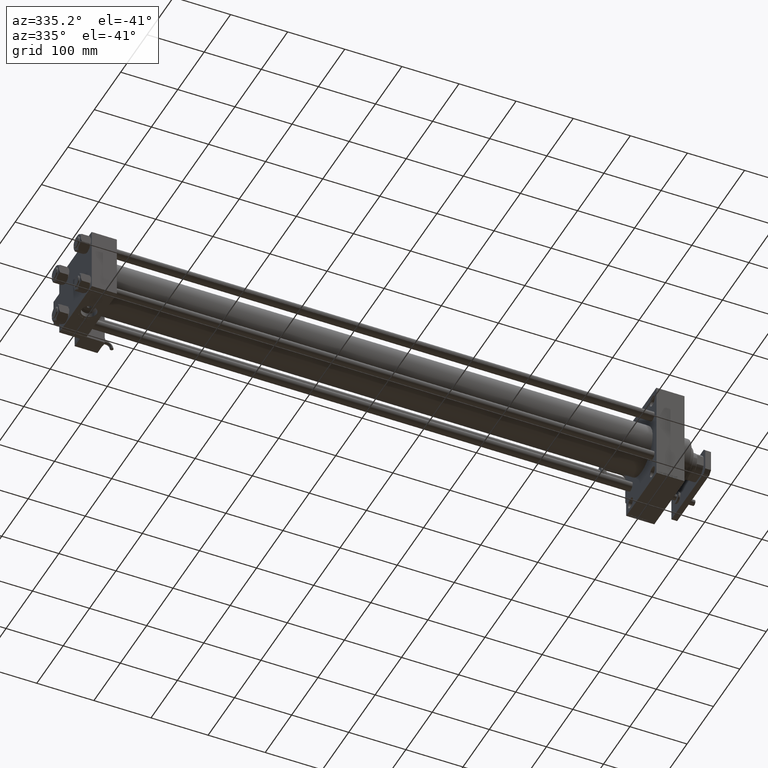
[diagram: clean part render]
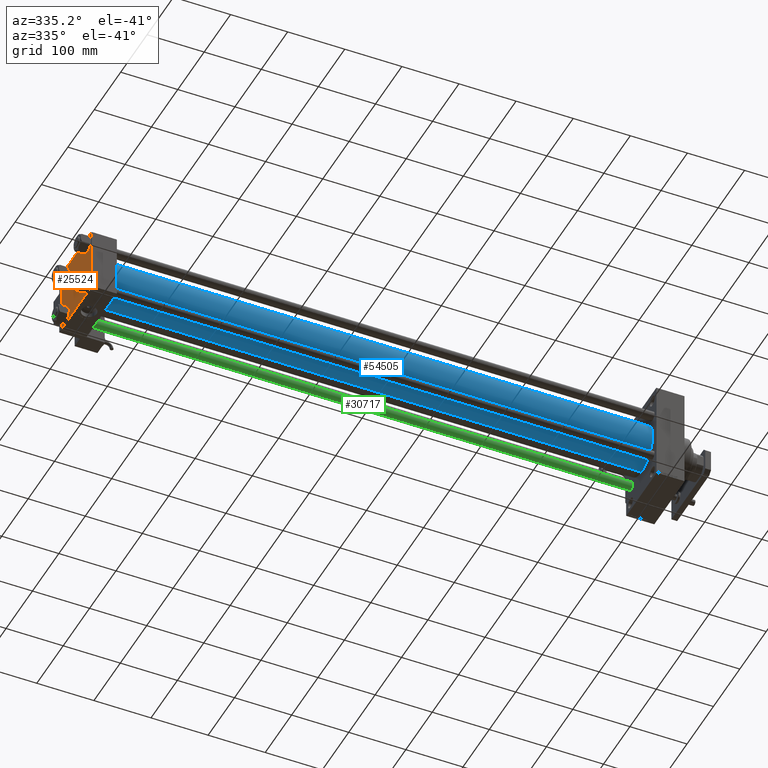
[diagram: same view with three faces highlighted in distinct colors, each labeled with its STEP entity id]
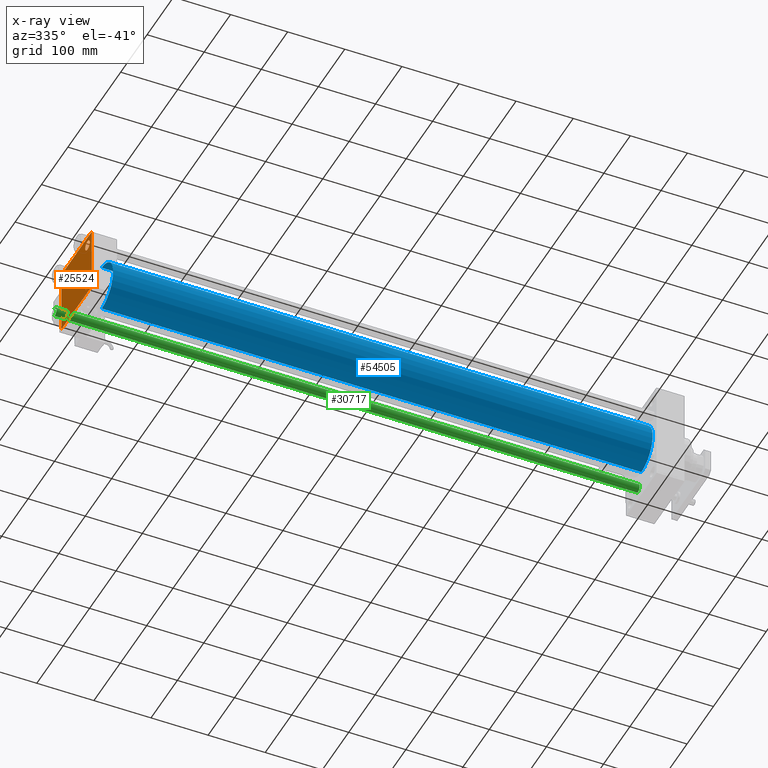
[diagram: x-ray of the same camera — body ghosted, the three highlighted faces saturated]
A machine part, auxiliary view with three faces highlighted in distinct colors.
The next image is the same camera in x-ray (body ghosted, the three faces saturated) — at least one of them is partly hidden behind the body in this view.
Their STEP definitions:

[orange] entity #25524 — the highlighted planar face has unit normal (-1, 0, 0).
#472 = VECTOR ( 'NONE', #47774, 1000.000000000000000 ) ;
#583 = CARTESIAN_POINT ( 'NONE',  ( 0.000000000000000000, -57.50000000000000000, 56.99999999999997868 ) ) ;
#886 = CARTESIAN_POINT ( 'NONE',  ( 0.000000000000000000, 41.34999999999999432, 41.34999999999999432 ) ) ;
#1407 = CARTESIAN_POINT ( 'NONE',  ( 0.000000000000000000, -57.49999999999999289, -57.00000000000003553 ) ) ;
#1679 = CIRCLE ( 'NONE', #4413, 8.499999999999992895 ) ;
#1749 = LINE ( 'NONE', #44703, #44667 ) ;
#1907 = PLANE ( 'NONE',  #14143 ) ;
#2385 = CARTESIAN_POINT ( 'NONE',  ( 0.000000000000000000, 41.34999999999999432, -41.34999999999999432 ) ) ;
#3328 = ORIENTED_EDGE ( 'NONE', *, *, #8777, .F. ) ;
#3575 = LINE ( 'NONE', #20702, #10053 ) ;
#3611 = ORIENTED_EDGE ( 'NONE', *, *, #27211, .T. ) ;
#3769 = ORIENTED_EDGE ( 'NONE', *, *, #6845, .T. ) ;
#3789 = CARTESIAN_POINT ( 'NONE',  ( 0.000000000000000000, -41.34999999999998721, 41.35000000000000142 ) ) ;
#3870 = EDGE_CURVE ( 'NONE', #15380, #25013, #34316, .T. ) ;
#4316 = CIRCLE ( 'NONE', #40188, 8.499999999999992895 ) ;
#4413 = AXIS2_PLACEMENT_3D ( 'NONE', #5612, #32280, #31708 ) ;
#4792 = VERTEX_POINT ( 'NONE', #34865 ) ;
#5126 = CARTESIAN_POINT ( 'NONE',  ( 0.000000000000000000, 57.00000000000001421, 57.50000000000001421 ) ) ;
#5292 = FACE_OUTER_BOUND ( 'NONE', #35782, .T. ) ;
#5612 = CARTESIAN_POINT ( 'NONE',  ( 0.000000000000000000, -41.34999999999998721, -41.35000000000000142 ) ) ;
#5772 = DIRECTION ( 'NONE',  ( 0.000000000000000000, 0.000000000000000000, 1.000000000000000000 ) ) ;
#5986 = LINE ( 'NONE', #51772, #47277 ) ;
#6124 = FACE_BOUND ( 'NONE', #35247, .T. ) ;
#6845 = EDGE_CURVE ( 'NONE', #22451, #30479, #14969, .T. ) ;
#6895 = LINE ( 'NONE', #24005, #27522 ) ;
#6917 = VERTEX_POINT ( 'NONE', #51258 ) ;
#8036 = CARTESIAN_POINT ( 'NONE',  ( 0.000000000000000000, 41.34999999999999432, 41.34999999999999432 ) ) ;
#8777 = EDGE_CURVE ( 'NONE', #46568, #12238, #1749, .T. ) ;
#8823 = EDGE_CURVE ( 'NONE', #33726, #25355, #4316, .T. ) ;
#9693 = EDGE_CURVE ( 'NONE', #17118, #20134, #50997, .T. ) ;
#10053 = VECTOR ( 'NONE', #29393, 1000.000000000000114 ) ;
#10580 = AXIS2_PLACEMENT_3D ( 'NONE', #886, #29816, #17990 ) ;
#10623 = CIRCLE ( 'NONE', #30337, 8.499999999999992895 ) ;
#10842 = EDGE_CURVE ( 'NONE', #52630, #12238, #5986, .T. ) ;
#11962 = DIRECTION ( 'NONE',  ( 1.000000000000000000, -0.000000000000000000, 0.000000000000000000 ) ) ;
#12013 = VECTOR ( 'NONE', #51996, 999.9999999999998863 ) ;
#12211 = ORIENTED_EDGE ( 'NONE', *, *, #26237, .T. ) ;
#12238 = VERTEX_POINT ( 'NONE', #1407 ) ;
#12253 = CARTESIAN_POINT ( 'NONE',  ( 0.000000000000000000, 57.25000000000119371, -57.24999999999880629 ) ) ;
#12825 = VERTEX_POINT ( 'NONE', #48638 ) ;
#13301 = DIRECTION ( 'NONE',  ( 0.000000000000000000, -0.7071067811865524577, 0.7071067811865426878 ) ) ;
#13801 = LINE ( 'NONE', #22780, #12013 ) ;
#14105 = AXIS2_PLACEMENT_3D ( 'NONE', #2385, #14747, #5772 ) ;
#14143 = AXIS2_PLACEMENT_3D ( 'NONE', #43764, #22692, #36150 ) ;
#14747 = DIRECTION ( 'NONE',  ( 1.000000000000000000, -0.000000000000000000, 0.000000000000000000 ) ) ;
#14969 = CIRCLE ( 'NONE', #49968, 8.499999999999992895 ) ;
#15000 = ORIENTED_EDGE ( 'NONE', *, *, #3870, .F. ) ;
#15380 = VERTEX_POINT ( 'NONE', #5126 ) ;
#16189 = DIRECTION ( 'NONE',  ( -0.000000000000000000, -0.7071067811865328068, -0.7071067811865622277 ) ) ;
#16267 = CIRCLE ( 'NONE', #51254, 8.499999999999992895 ) ;
#17118 = VERTEX_POINT ( 'NONE', #46237 ) ;
#17990 = DIRECTION ( 'NONE',  ( 0.000000000000000000, 0.000000000000000000, 1.000000000000000000 ) ) ;
#18082 = CARTESIAN_POINT ( 'NONE',  ( 0.000000000000000000, 41.34999999999999432, 32.85000000000000142 ) ) ;
#19166 = ORIENTED_EDGE ( 'NONE', *, *, #54966, .T. ) ;
#20001 = AXIS2_PLACEMENT_3D ( 'NONE', #39884, #31440, #27492 ) ;
#20134 = VERTEX_POINT ( 'NONE', #45382 ) ;
#20699 = CARTESIAN_POINT ( 'NONE',  ( 0.000000000000000000, 57.50000000000000000, -57.49999999999999289 ) ) ;
#20702 = CARTESIAN_POINT ( 'NONE',  ( 0.000000000000000000, 57.24999999999922551, 57.25000000000081712 ) ) ;
#21430 = EDGE_CURVE ( 'NONE', #27419, #17118, #6895, .T. ) ;
#22451 = VERTEX_POINT ( 'NONE', #18082 ) ;
#22564 = CARTESIAN_POINT ( 'NONE',  ( 0.000000000000000000, 57.50000000000000000, 57.00000000000004263 ) ) ;
#22670 = CIRCLE ( 'NONE', #20001, 8.499999999999992895 ) ;
#22692 = DIRECTION ( 'NONE',  ( -1.000000000000000000, 0.000000000000000000, -0.000000000000000000 ) ) ;
#22780 = CARTESIAN_POINT ( 'NONE',  ( -0.000000000000000000, -57.24999999999918998, 57.25000000000078160 ) ) ;
#22827 = EDGE_LOOP ( 'NONE', ( #12211, #3769 ) ) ;
#24005 = CARTESIAN_POINT ( 'NONE',  ( 0.000000000000000000, 57.50000000000000000, 57.50000000000001421 ) ) ;
#24543 = ORIENTED_EDGE ( 'NONE', *, *, #9693, .T. ) ;
#24592 = EDGE_CURVE ( 'NONE', #35815, #6917, #30220, .T. ) ;
#25013 = VERTEX_POINT ( 'NONE', #46114 ) ;
#25113 = DIRECTION ( 'NONE',  ( 0.000000000000000000, 0.000000000000000000, 1.000000000000000000 ) ) ;
#25201 = CARTESIAN_POINT ( 'NONE',  ( 0.000000000000000000, 41.34999999999999432, 49.84999999999999432 ) ) ;
#25330 = CARTESIAN_POINT ( 'NONE',  ( 0.000000000000000000, 57.50000000000000000, 57.50000000000001421 ) ) ;
#25355 = VERTEX_POINT ( 'NONE', #42134 ) ;
#25524 = ADVANCED_FACE ( 'NONE', ( #44584, #48241, #6124, #40383, #5292 ), #1907, .T. ) ;
#26237 = EDGE_CURVE ( 'NONE', #30479, #22451, #46464, .T. ) ;
#26967 = VECTOR ( 'NONE', #33881, 1000.000000000000000 ) ;
#27032 = CARTESIAN_POINT ( 'NONE',  ( 0.000000000000000000, 41.34999999999999432, -49.84999999999999432 ) ) ;
#27211 = EDGE_CURVE ( 'NONE', #25355, #33726, #10623, .T. ) ;
#27297 = EDGE_LOOP ( 'NONE', ( #35258, #19166 ) ) ;
#27419 = VERTEX_POINT ( 'NONE', #22564 ) ;
#27492 = DIRECTION ( 'NONE',  ( 0.000000000000000000, 0.000000000000000000, 1.000000000000000000 ) ) ;
#27522 = VECTOR ( 'NONE', #31598, 1000.000000000000000 ) ;
#28950 = DIRECTION ( 'NONE',  ( 0.000000000000000000, 6.033820786006285224E-17, -1.000000000000000000 ) ) ;
#29393 = DIRECTION ( 'NONE',  ( 0.000000000000000000, 0.7071067811865573427, -0.7071067811865376918 ) ) ;
#29816 = DIRECTION ( 'NONE',  ( 1.000000000000000000, -0.000000000000000000, 0.000000000000000000 ) ) ;
#29940 = CARTESIAN_POINT ( 'NONE',  ( 0.000000000000000000, 41.34999999999999432, -41.34999999999999432 ) ) ;
#30220 = CIRCLE ( 'NONE', #14105, 8.499999999999992895 ) ;
#30337 = AXIS2_PLACEMENT_3D ( 'NONE', #3789, #43086, #25113 ) ;
#30479 = VERTEX_POINT ( 'NONE', #25201 ) ;
#31440 = DIRECTION ( 'NONE',  ( 1.000000000000000000, -0.000000000000000000, 0.000000000000000000 ) ) ;
#31598 = DIRECTION ( 'NONE',  ( 0.000000000000000000, 0.000000000000000000, -1.000000000000000000 ) ) ;
#31708 = DIRECTION ( 'NONE',  ( 0.000000000000000000, 0.000000000000000000, 1.000000000000000000 ) ) ;
#31838 = ORIENTED_EDGE ( 'NONE', *, *, #50696, .T. ) ;
#31969 = CARTESIAN_POINT ( 'NONE',  ( 0.000000000000000000, -57.00000000000001421, -57.50000000000000711 ) ) ;
#32280 = DIRECTION ( 'NONE',  ( 1.000000000000000000, -0.000000000000000000, 0.000000000000000000 ) ) ;
#32587 = ORIENTED_EDGE ( 'NONE', *, *, #21430, .T. ) ;
#33726 = VERTEX_POINT ( 'NONE', #37488 ) ;
#33881 = DIRECTION ( 'NONE',  ( 0.000000000000000000, -1.000000000000000000, -1.206764157201257291E-16 ) ) ;
#33927 = VECTOR ( 'NONE', #16189, 1000.000000000000000 ) ;
#34316 = LINE ( 'NONE', #25330, #472 ) ;
#34865 = CARTESIAN_POINT ( 'NONE',  ( 0.000000000000000000, -41.34999999999998721, -49.85000000000000142 ) ) ;
#34879 = ORIENTED_EDGE ( 'NONE', *, *, #36899, .T. ) ;
#35247 = EDGE_LOOP ( 'NONE', ( #49543, #41472 ) ) ;
#35258 = ORIENTED_EDGE ( 'NONE', *, *, #46655, .T. ) ;
#35782 = EDGE_LOOP ( 'NONE', ( #32587, #24543, #31838, #49948, #3328, #44152, #15000, #34879 ) ) ;
#35801 = EDGE_CURVE ( 'NONE', #6917, #35815, #16267, .T. ) ;
#35815 = VERTEX_POINT ( 'NONE', #27032 ) ;
#36013 = DIRECTION ( 'NONE',  ( 1.000000000000000000, -0.000000000000000000, 0.000000000000000000 ) ) ;
#36150 = DIRECTION ( 'NONE',  ( -0.000000000000000000, 0.000000000000000000, 1.000000000000000000 ) ) ;
#36899 = EDGE_CURVE ( 'NONE', #15380, #27419, #3575, .T. ) ;
#37488 = CARTESIAN_POINT ( 'NONE',  ( 0.000000000000000000, -41.34999999999998721, 32.85000000000000853 ) ) ;
#37546 = LINE ( 'NONE', #20699, #26967 ) ;
#39884 = CARTESIAN_POINT ( 'NONE',  ( 0.000000000000000000, -41.34999999999998721, -41.35000000000000142 ) ) ;
#40188 = AXIS2_PLACEMENT_3D ( 'NONE', #45822, #41054, #41897 ) ;
#40383 = FACE_BOUND ( 'NONE', #22827, .T. ) ;
#40522 = EDGE_CURVE ( 'NONE', #46568, #25013, #13801, .T. ) ;
#41054 = DIRECTION ( 'NONE',  ( 1.000000000000000000, -0.000000000000000000, 0.000000000000000000 ) ) ;
#41472 = ORIENTED_EDGE ( 'NONE', *, *, #24592, .T. ) ;
#41897 = DIRECTION ( 'NONE',  ( 0.000000000000000000, 0.000000000000000000, 1.000000000000000000 ) ) ;
#42134 = CARTESIAN_POINT ( 'NONE',  ( 0.000000000000000000, -41.34999999999998721, 49.85000000000000142 ) ) ;
#43086 = DIRECTION ( 'NONE',  ( 1.000000000000000000, -0.000000000000000000, 0.000000000000000000 ) ) ;
#43764 = CARTESIAN_POINT ( 'NONE',  ( 0.000000000000000000, 0.000000000000000000, 0.000000000000000000 ) ) ;
#44152 = ORIENTED_EDGE ( 'NONE', *, *, #40522, .T. ) ;
#44584 = FACE_BOUND ( 'NONE', #46677, .T. ) ;
#44667 = VECTOR ( 'NONE', #28950, 1000.000000000000000 ) ;
#44703 = CARTESIAN_POINT ( 'NONE',  ( 0.000000000000000000, -57.50000000000000000, 57.49999999999999289 ) ) ;
#45382 = CARTESIAN_POINT ( 'NONE',  ( 0.000000000000000000, 57.00000000000002842, -57.49999999999999289 ) ) ;
#45822 = CARTESIAN_POINT ( 'NONE',  ( 0.000000000000000000, -41.34999999999998721, 41.35000000000000142 ) ) ;
#46114 = CARTESIAN_POINT ( 'NONE',  ( 0.000000000000000000, -56.99999999999997158, 57.49999999999999289 ) ) ;
#46237 = CARTESIAN_POINT ( 'NONE',  ( 0.000000000000000000, 57.50000000000000000, -56.99999999999997158 ) ) ;
#46464 = CIRCLE ( 'NONE', #10580, 8.499999999999992895 ) ;
#46568 = VERTEX_POINT ( 'NONE', #583 ) ;
#46655 = EDGE_CURVE ( 'NONE', #12825, #4792, #1679, .T. ) ;
#46677 = EDGE_LOOP ( 'NONE', ( #3611, #47294 ) ) ;
#47277 = VECTOR ( 'NONE', #13301, 1000.000000000000000 ) ;
#47294 = ORIENTED_EDGE ( 'NONE', *, *, #8823, .T. ) ;
#47774 = DIRECTION ( 'NONE',  ( 0.000000000000000000, -1.000000000000000000, -1.810146235801885567E-16 ) ) ;
#48241 = FACE_BOUND ( 'NONE', #27297, .T. ) ;
#48375 = DIRECTION ( 'NONE',  ( 0.000000000000000000, 0.000000000000000000, 1.000000000000000000 ) ) ;
#48638 = CARTESIAN_POINT ( 'NONE',  ( 0.000000000000000000, -41.34999999999998721, -32.85000000000000853 ) ) ;
#49543 = ORIENTED_EDGE ( 'NONE', *, *, #35801, .T. ) ;
#49948 = ORIENTED_EDGE ( 'NONE', *, *, #10842, .T. ) ;
#49968 = AXIS2_PLACEMENT_3D ( 'NONE', #8036, #11962, #50148 ) ;
#50148 = DIRECTION ( 'NONE',  ( 0.000000000000000000, 0.000000000000000000, 1.000000000000000000 ) ) ;
#50696 = EDGE_CURVE ( 'NONE', #20134, #52630, #37546, .T. ) ;
#50997 = LINE ( 'NONE', #12253, #33927 ) ;
#51254 = AXIS2_PLACEMENT_3D ( 'NONE', #29940, #36013, #48375 ) ;
#51258 = CARTESIAN_POINT ( 'NONE',  ( 0.000000000000000000, 41.34999999999999432, -32.85000000000000142 ) ) ;
#51772 = CARTESIAN_POINT ( 'NONE',  ( 0.000000000000000000, -57.24999999999962341, -57.25000000000041211 ) ) ;
#51996 = DIRECTION ( 'NONE',  ( -0.000000000000000000, 0.7071067811865574537, 0.7071067811865376918 ) ) ;
#52630 = VERTEX_POINT ( 'NONE', #31969 ) ;
#54966 = EDGE_CURVE ( 'NONE', #4792, #12825, #22670, .T. ) ;

[blue] entity #54505 — the highlighted cylindrical surface (edge-blend (fillet) strip) has radius 43 mm, axis along (-1, -0, -0).
#236 = CIRCLE ( 'NONE', #19018, 43.00000000000000000 ) ;
#3155 = DIRECTION ( 'NONE',  ( -1.000000000000000000, -0.000000000000000000, -0.000000000000000000 ) ) ;
#3812 = VERTEX_POINT ( 'NONE', #4003 ) ;
#4003 = CARTESIAN_POINT ( 'NONE',  ( 989.0000000000000000, -2.602085213965210642E-15, 43.00000000000000000 ) ) ;
#4472 = CIRCLE ( 'NONE', #10718, 43.00000000000000000 ) ;
#7606 = CARTESIAN_POINT ( 'NONE',  ( 989.0000000000000000, -2.602085213965210642E-15, 0.000000000000000000 ) ) ;
#10718 = AXIS2_PLACEMENT_3D ( 'NONE', #52489, #14580, #48551 ) ;
#14580 = DIRECTION ( 'NONE',  ( 1.000000000000000000, -0.000000000000000000, 0.000000000000000000 ) ) ;
#14666 = CYLINDRICAL_SURFACE ( 'NONE', #18145, 43.00000000000000000 ) ;
#15739 = EDGE_CURVE ( 'NONE', #41309, #18129, #4472, .T. ) ;
#18129 = VERTEX_POINT ( 'NONE', #53793 ) ;
#18145 = AXIS2_PLACEMENT_3D ( 'NONE', #31513, #39406, #27021 ) ;
#19018 = AXIS2_PLACEMENT_3D ( 'NONE', #7606, #46340, #55038 ) ;
#19303 = DIRECTION ( 'NONE',  ( -1.000000000000000000, -0.000000000000000000, -0.000000000000000000 ) ) ;
#26095 = EDGE_CURVE ( 'NONE', #41125, #18129, #41358, .T. ) ;
#26752 = FACE_OUTER_BOUND ( 'NONE', #39903, .T. ) ;
#27021 = DIRECTION ( 'NONE',  ( 0.000000000000000000, 0.000000000000000000, 1.000000000000000000 ) ) ;
#28907 = ORIENTED_EDGE ( 'NONE', *, *, #15739, .T. ) ;
#28966 = CARTESIAN_POINT ( 'NONE',  ( 44.00000000000004263, -2.602085213965210642E-15, 43.00000000000000000 ) ) ;
#29530 = CARTESIAN_POINT ( 'NONE',  ( 989.0000000000000000, 2.663896022368408223E-15, -43.00000000000000000 ) ) ;
#31513 = CARTESIAN_POINT ( 'NONE',  ( 989.0000000000000000, -2.602085213965210642E-15, 0.000000000000000000 ) ) ;
#35593 = CARTESIAN_POINT ( 'NONE',  ( 989.0000000000000000, -2.602085213965210642E-15, 43.00000000000000000 ) ) ;
#37724 = VECTOR ( 'NONE', #19303, 1000.000000000000000 ) ;
#38050 = EDGE_CURVE ( 'NONE', #3812, #41125, #236, .T. ) ;
#39406 = DIRECTION ( 'NONE',  ( -1.000000000000000000, -0.000000000000000000, -0.000000000000000000 ) ) ;
#39592 = ORIENTED_EDGE ( 'NONE', *, *, #26095, .F. ) ;
#39903 = EDGE_LOOP ( 'NONE', ( #39592, #46828, #42711, #28907 ) ) ;
#41125 = VERTEX_POINT ( 'NONE', #45554 ) ;
#41309 = VERTEX_POINT ( 'NONE', #28966 ) ;
#41358 = LINE ( 'NONE', #29530, #47330 ) ;
#42711 = ORIENTED_EDGE ( 'NONE', *, *, #50632, .T. ) ;
#44578 = LINE ( 'NONE', #35593, #37724 ) ;
#45554 = CARTESIAN_POINT ( 'NONE',  ( 989.0000000000000000, 2.663896022368408223E-15, -43.00000000000000000 ) ) ;
#46340 = DIRECTION ( 'NONE',  ( 1.000000000000000000, 0.000000000000000000, 0.000000000000000000 ) ) ;
#46828 = ORIENTED_EDGE ( 'NONE', *, *, #38050, .F. ) ;
#47330 = VECTOR ( 'NONE', #3155, 1000.000000000000000 ) ;
#48551 = DIRECTION ( 'NONE',  ( 0.000000000000000000, 0.000000000000000000, 1.000000000000000000 ) ) ;
#50632 = EDGE_CURVE ( 'NONE', #3812, #41309, #44578, .T. ) ;
#52489 = CARTESIAN_POINT ( 'NONE',  ( 44.00000000000004263, -2.602085213965210642E-15, 0.000000000000000000 ) ) ;
#53793 = CARTESIAN_POINT ( 'NONE',  ( 44.00000000000004263, 2.663896022368408223E-15, -43.00000000000000000 ) ) ;
#54505 = ADVANCED_FACE ( 'NONE', ( #26752 ), #14666, .T. ) ;
#55038 = DIRECTION ( 'NONE',  ( 0.000000000000000000, 0.000000000000000000, -1.000000000000000000 ) ) ;

[green] entity #30717 — the highlighted cylindrical surface (edge-blend (fillet) strip) has radius 8 mm, axis along (-1, -0, 0).
#2466 = EDGE_CURVE ( 'NONE', #38851, #35564, #21958, .T. ) ;
#3533 = FACE_OUTER_BOUND ( 'NONE', #8241, .T. ) ;
#4915 = VECTOR ( 'NONE', #55297, 1000.000000000000000 ) ;
#7201 = DIRECTION ( 'NONE',  ( -0.000000000000000000, -0.000000000000000000, -1.000000000000000000 ) ) ;
#7291 = DIRECTION ( 'NONE',  ( -0.000000000000000000, -0.000000000000000000, 1.000000000000000000 ) ) ;
#7922 = CARTESIAN_POINT ( 'NONE',  ( 0.000000000000000000, 0.000000000000000000, 1021.499999999999886 ) ) ;
#8153 = CARTESIAN_POINT ( 'NONE',  ( -8.000000000000000000, 0.000000000000000000, 1022.000000000000000 ) ) ;
#8209 = DIRECTION ( 'NONE',  ( 1.000000000000000000, 0.000000000000000000, 0.000000000000000000 ) ) ;
#8241 = EDGE_LOOP ( 'NONE', ( #36532, #43634, #14300, #49172 ) ) ;
#8392 = EDGE_CURVE ( 'NONE', #19950, #41187, #42839, .T. ) ;
#8669 = EDGE_CURVE ( 'NONE', #19950, #35564, #27844, .T. ) ;
#14300 = ORIENTED_EDGE ( 'NONE', *, *, #42679, .T. ) ;
#15333 = CYLINDRICAL_SURFACE ( 'NONE', #48446, 8.000000000000000000 ) ;
#16512 = CARTESIAN_POINT ( 'NONE',  ( 8.000000000000000000, 9.797174393178825657E-16, 1021.499999999999886 ) ) ;
#19950 = VERTEX_POINT ( 'NONE', #16512 ) ;
#20482 = CARTESIAN_POINT ( 'NONE',  ( 0.000000000000000000, 0.000000000000000000, 0.4999999999999449329 ) ) ;
#21958 = CIRCLE ( 'NONE', #50652, 8.000000000000000000 ) ;
#22814 = CARTESIAN_POINT ( 'NONE',  ( 8.000000000000000000, 9.797174393178825657E-16, 1022.000000000000000 ) ) ;
#24029 = CARTESIAN_POINT ( 'NONE',  ( 0.000000000000000000, 0.000000000000000000, 1022.000000000000000 ) ) ;
#27844 = LINE ( 'NONE', #22814, #44622 ) ;
#28517 = DIRECTION ( 'NONE',  ( -1.000000000000000000, 0.000000000000000000, 0.000000000000000000 ) ) ;
#30717 = ADVANCED_FACE ( 'NONE', ( #3533 ), #15333, .T. ) ;
#31150 = AXIS2_PLACEMENT_3D ( 'NONE', #7922, #46665, #8209 ) ;
#33600 = CARTESIAN_POINT ( 'NONE',  ( 8.000000000000000000, 9.797174393178825657E-16, 0.4999999999999449329 ) ) ;
#35564 = VERTEX_POINT ( 'NONE', #33600 ) ;
#36532 = ORIENTED_EDGE ( 'NONE', *, *, #8669, .F. ) ;
#38851 = VERTEX_POINT ( 'NONE', #54496 ) ;
#40499 = DIRECTION ( 'NONE',  ( -0.000000000000000000, -0.000000000000000000, -1.000000000000000000 ) ) ;
#41187 = VERTEX_POINT ( 'NONE', #45833 ) ;
#42679 = EDGE_CURVE ( 'NONE', #41187, #38851, #46611, .T. ) ;
#42839 = CIRCLE ( 'NONE', #31150, 8.000000000000000000 ) ;
#43634 = ORIENTED_EDGE ( 'NONE', *, *, #8392, .T. ) ;
#44622 = VECTOR ( 'NONE', #40499, 1000.000000000000000 ) ;
#45833 = CARTESIAN_POINT ( 'NONE',  ( -8.000000000000000000, 0.000000000000000000, 1021.499999999999886 ) ) ;
#46588 = DIRECTION ( 'NONE',  ( 1.000000000000000000, 0.000000000000000000, 0.000000000000000000 ) ) ;
#46611 = LINE ( 'NONE', #8153, #4915 ) ;
#46665 = DIRECTION ( 'NONE',  ( 0.000000000000000000, 0.000000000000000000, -1.000000000000000000 ) ) ;
#48446 = AXIS2_PLACEMENT_3D ( 'NONE', #24029, #7201, #28517 ) ;
#49172 = ORIENTED_EDGE ( 'NONE', *, *, #2466, .T. ) ;
#50652 = AXIS2_PLACEMENT_3D ( 'NONE', #20482, #7291, #46588 ) ;
#54496 = CARTESIAN_POINT ( 'NONE',  ( -8.000000000000000000, 0.000000000000000000, 0.4999999999999449329 ) ) ;
#55297 = DIRECTION ( 'NONE',  ( -0.000000000000000000, -0.000000000000000000, -1.000000000000000000 ) ) ;